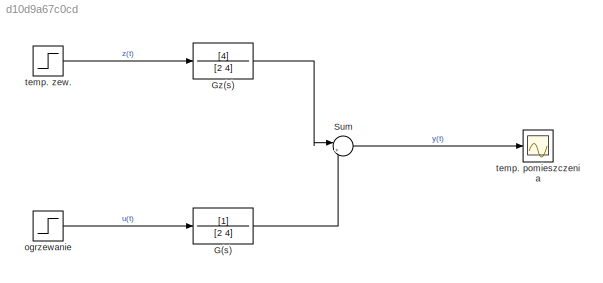
MODEL slx_d10d9a67c0cd
KIND model
CONFIG AbsTol = auto
CONFIG EnableMultiTasking = off
CONFIG FixedStep = auto
CONFIG MaxStep = auto
CONFIG MinStep = auto
CONFIG RelTol = 1e-3
CONFIG SampleTimeConstraint = Unconstrained
CONFIG SolverName = VariableStepAuto
CONFIG StartTime = 0.0
CONFIG StopTime = 7
BLOCK [TransferFcn] G(s)
  Denominator = [2 4]
BLOCK [TransferFcn] Gz(s)
  Denominator = [2 4]
  Numerator = [4]
BLOCK [Sum] Sum
  Inputs = |++
BLOCK [Step] ogrzewanie
  After = 0
  SampleTime = 0
  Time = 0
BLOCK [Scope] temp. pomieszczenia
  Floating = off
  NumInputPorts = 1
  ScopeSpecificationString = Simulink.scopes.TimeScopeBlockCfg('CurrentConfiguration', extmgr.ConfigurationSet(extmgr.Configuration('Core','General UI',true),extmgr.Configuration('Core','Source UI',true),extmgr.Configuration('Sources','WiredSimulink',true),extmgr.Configuration('Visuals','Time Domain',true,'SerializedDisplays',{struct('MinYLimReal','-2.2499','MaxYLimReal','0.24999','YLabelReal','','MinYLimMag','0.00000','MaxYL...<+1349ch>
BLOCK [Step] temp. zew.
  After = -2
  SampleTime = 0
  Time = 2
LINE G(s):1 -> Sum:2
LINE Gz(s):1 -> Sum:1
LINE Sum:1 -> temp. pomieszczenia:1
LINE ogrzewanie:1 -> G(s):1
LINE temp. zew.:1 -> Gz(s):1
